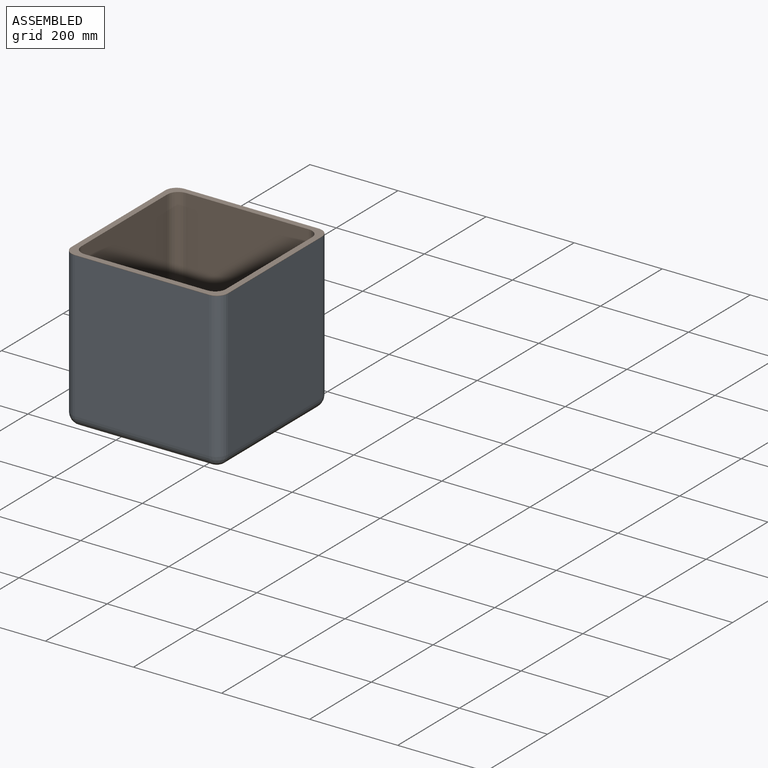
[diagram: assembled view]
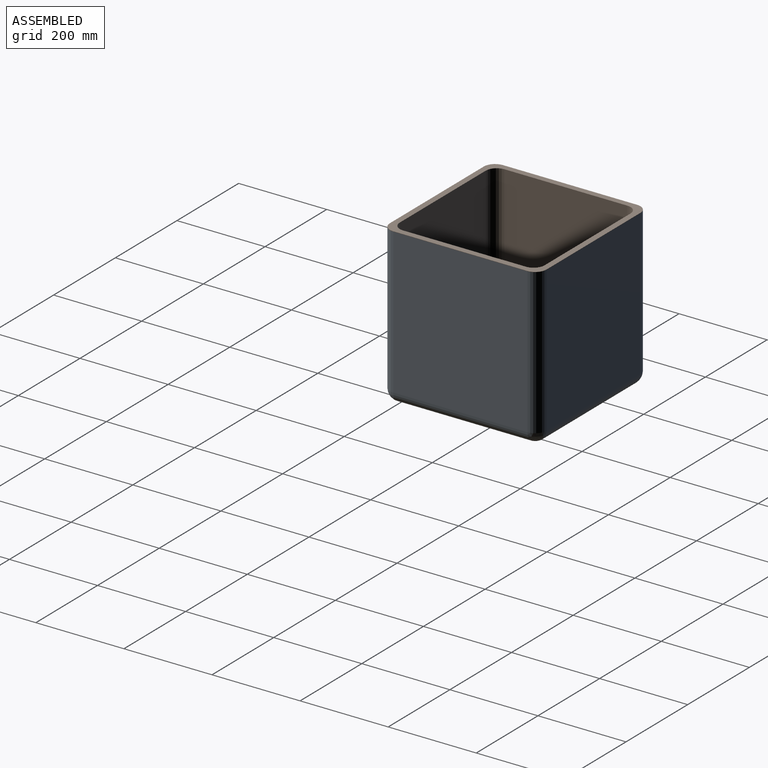
[diagram: assembled view, second angle]
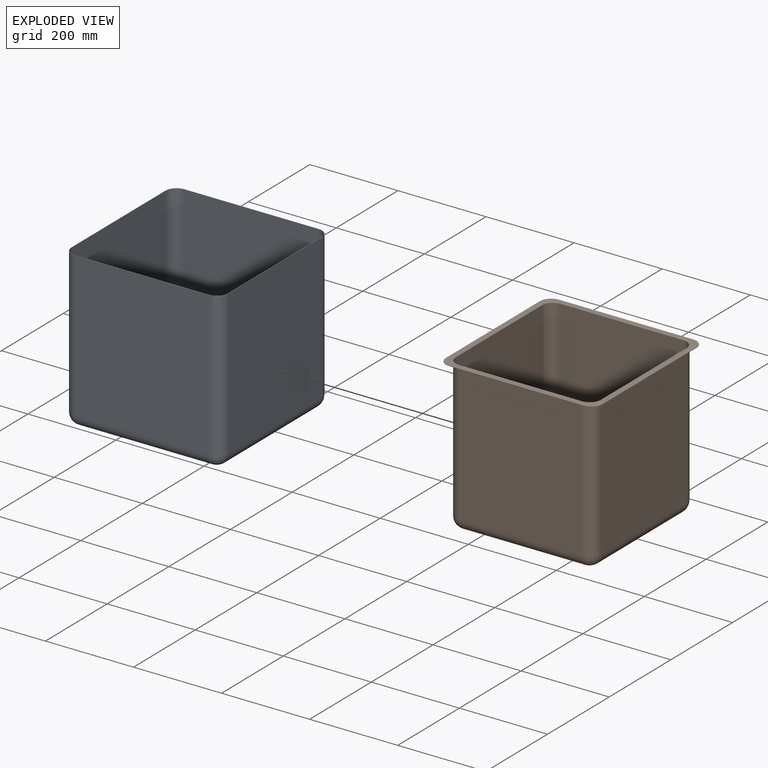
[diagram: exploded view]
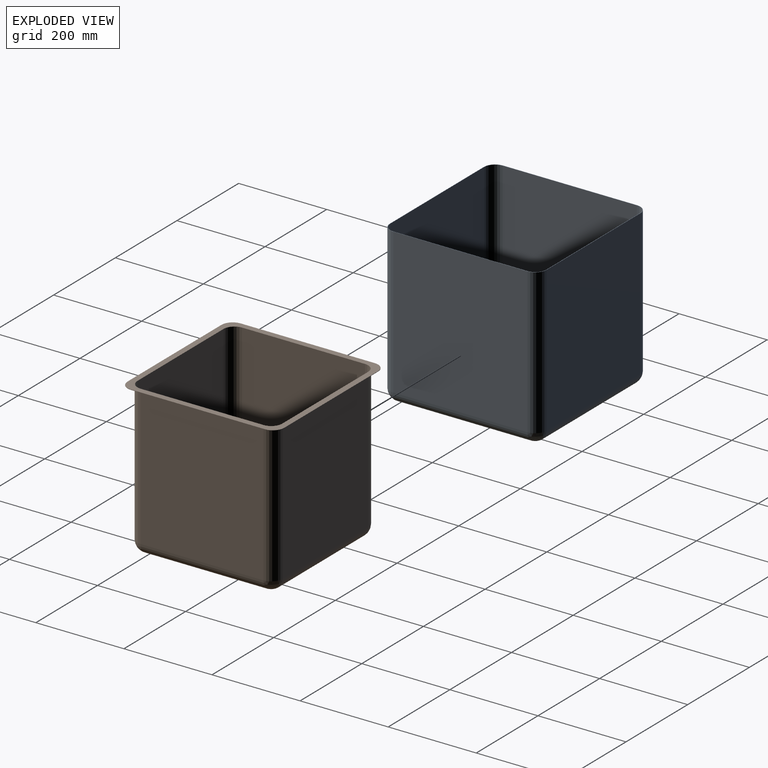
[diagram: exploded view, second angle]
ASSEMBLY  parts=2 mates=2
PART A: 35 faces, bbox 355.6x355.6x355.6 mm
  f0: plane 355.6x355.6mm, normal (0,0,1), area 1092.4mm2, adj f1,f2,f3,f4,f5,f6,f7,f8
  f1: plane 330.2x304.8mm, normal (1,0,0), area 100645mm2, adj f0,f2,f8,f17
  f2: cylinder r=25.4mm len=330.2mm, axis (0,0,-1), area 13174.4mm2, adj f0,f1,f3,f15
  f3: plane 330.2x304.8mm, normal (0,1,0), area 100645mm2, adj f0,f2,f4,f13
  f4: cylinder r=25.4mm len=330.2mm, axis (0,0,-1), area 13174.4mm2, adj f0,f3,f5,f11
  f5: plane 330.2x304.8mm, normal (-1,0,0), area 100645mm2, adj f0,f4,f6,f10
  f6: cylinder r=25.4mm len=330.2mm, axis (0,0,-1), area 13174.4mm2, adj f0,f5,f7,f12
  f7: plane 330.2x304.8mm, normal (0,-1,0), area 100645mm2, adj f0,f6,f8,f14
  f8: cylinder r=25.4mm len=330.2mm, axis (0,0,-1), area 13174.4mm2, adj f0,f1,f7,f16
  f9: plane 304.8x304.8mm, normal (0,0,-1), area 92903mm2, adj f10,f13,f14,f17
  f10: cylinder r=25.4mm len=304.8mm, axis (0,-1,0), area 12161mm2, adj f5,f9,f11,f12
  f11: sphere r=25.4mm, area 1013.4mm2, adj f4,f10,f13
  f12: sphere r=25.4mm, area 1013.4mm2, adj f6,f10,f14
  f13: cylinder r=25.4mm len=304.8mm, axis (-1,0,0), area 12161mm2, adj f3,f9,f11,f15
  f14: cylinder r=25.4mm len=304.8mm, axis (1,0,0), area 12161mm2, adj f7,f9,f12,f16
  f15: sphere r=25.4mm, area 1013.4mm2, adj f2,f13,f17
  f16: sphere r=25.4mm, area 1013.4mm2, adj f8,f14,f17
  f17: cylinder r=25.4mm len=304.8mm, axis (0,1,0), area 12161mm2, adj f1,f9,f15,f16
  f18: plane 330.2x304.8mm, normal (-1,0,0), area 100645mm2, adj f0,f19,f25,f34
  f19: cylinder r=24.61mm len=330.2mm, axis (0,0,-1), area 12762.7mm2, adj f0,f18,f20,f32
  f20: plane 330.2x304.8mm, normal (0,-1,0), area 100645mm2, adj f0,f19,f21,f30
  f21: cylinder r=24.61mm len=330.2mm, axis (0,0,-1), area 12762.7mm2, adj f0,f20,f22,f28
  f22: plane 330.2x304.8mm, normal (1,0,0), area 100645mm2, adj f0,f21,f23,f27
  f23: cylinder r=24.61mm len=330.2mm, axis (0,0,-1), area 12762.7mm2, adj f0,f22,f24,f29
  f24: plane 330.2x304.8mm, normal (0,1,0), area 100645mm2, adj f0,f23,f25,f31
  f25: cylinder r=24.61mm len=330.2mm, axis (0,0,-1), area 12762.7mm2, adj f0,f18,f24,f33
  f26: plane 304.8x304.8mm, normal (0,0,1), area 92903mm2, adj f27,f30,f31,f34
  f27: cylinder r=24.61mm len=304.8mm, axis (0,-1,0), area 11780.9mm2, adj f22,f26,f28,f29
  f28: sphere r=24.61mm, area 951.1mm2, adj f21,f27,f30
  f29: sphere r=24.61mm, area 951.1mm2, adj f23,f27,f31
  f30: cylinder r=24.61mm len=304.8mm, axis (-1,0,0), area 11780.9mm2, adj f20,f26,f28,f32
  f31: cylinder r=24.61mm len=304.8mm, axis (1,0,0), area 11780.9mm2, adj f24,f26,f29,f33
  f32: sphere r=24.61mm, area 951.1mm2, adj f19,f30,f34
  f33: sphere r=24.61mm, area 951.1mm2, adj f25,f31,f34
  f34: cylinder r=24.61mm len=304.8mm, axis (0,1,0), area 11780.9mm2, adj f18,f26,f32,f33
PART B: 44 faces, bbox 355.6x355.6x343.7 mm
  f0: plane 318.29x279.4mm, normal (-1,0,0), area 88931.3mm2, adj f1,f7,f16,f26
  f1: cylinder r=24.61mm len=318.29mm, axis (0,0,-1), area 12302.5mm2, adj f0,f2,f14,f26
  f2: plane 318.29x279.4mm, normal (0,-1,0), area 88931.3mm2, adj f1,f3,f12,f26
  f3: cylinder r=24.61mm len=318.29mm, axis (0,0,-1), area 12302.5mm2, adj f2,f4,f10,f26
  f4: plane 318.29x279.4mm, normal (1,0,0), area 88931.3mm2, adj f3,f5,f9,f26
  f5: cylinder r=24.61mm len=318.29mm, axis (0,0,-1), area 12302.5mm2, adj f4,f6,f11,f26
  f6: plane 318.29x279.4mm, normal (0,1,0), area 88931.3mm2, adj f5,f7,f13,f26
  f7: cylinder r=24.61mm len=318.29mm, axis (0,0,-1), area 12302.5mm2, adj f0,f6,f15,f26
  f8: plane 279.4x279.4mm, normal (0,0,1), area 78064.4mm2, adj f9,f12,f13,f16
  f9: cylinder r=24.61mm len=279.4mm, axis (0,-1,0), area 10799.2mm2, adj f4,f8,f10,f11
  f10: sphere r=24.61mm, area 951.1mm2, adj f3,f9,f12
  f11: sphere r=24.61mm, area 951.1mm2, adj f5,f9,f13
  f12: cylinder r=24.61mm len=279.4mm, axis (-1,0,0), area 10799.2mm2, adj f2,f8,f10,f14
  f13: cylinder r=24.61mm len=279.4mm, axis (1,0,0), area 10799.2mm2, adj f6,f8,f11,f15
  f14: sphere r=24.61mm, area 951.1mm2, adj f1,f12,f16
  f15: sphere r=24.61mm, area 951.1mm2, adj f7,f13,f16
  f16: cylinder r=24.61mm len=279.4mm, axis (0,1,0), area 10799.2mm2, adj f0,f8,f14,f15
  f17: plane 355.6x355.6mm, normal (0,0,-1), area 17419.3mm2, adj f18,f19,f20,f21,f22,f23,f24,f25
  f18: plane 304.8x0.79mm, normal (-1,0,0), area 241.9mm2, adj f17,f19,f25,f26
  f19: cylinder r=25.4mm len=25.4mm, axis (0,0,-1), area 31.7mm2, adj f17,f18,f20,f26
  f20: plane 304.8x0.79mm, normal (0,-1,0), area 241.9mm2, adj f17,f19,f21,f26
  f21: cylinder r=25.4mm len=25.4mm, axis (0,0,-1), area 31.7mm2, adj f17,f20,f22,f26
  f22: plane 304.8x0.79mm, normal (1,0,0), area 241.9mm2, adj f17,f21,f23,f26
  f23: cylinder r=25.4mm len=25.4mm, axis (0,0,-1), area 31.7mm2, adj f17,f22,f24,f26
  f24: plane 304.8x0.79mm, normal (0,1,0), area 241.9mm2, adj f17,f23,f25,f26
  f25: cylinder r=25.4mm len=25.4mm, axis (0,0,-1), area 31.7mm2, adj f17,f18,f24,f26
  f26: plane 355.6x355.6mm, normal (0,0,1), area 18431.1mm2, adj f0,f1,f2,f3,f4,f5,f6,f7
  f27: plane 279.4x279.4mm, normal (0,0,-1), area 78064.4mm2, adj f28,f30,f32,f34
  f28: cylinder r=25.4mm len=279.4mm, axis (0,1,0), area 11147.6mm2, adj f27,f29,f35,f43
  f29: sphere r=25.4mm, area 1013.4mm2, adj f28,f30,f42
  f30: cylinder r=25.4mm len=279.4mm, axis (-1,0,0), area 11147.6mm2, adj f27,f29,f31,f41
  f31: sphere r=25.4mm, area 1013.4mm2, adj f30,f32,f40
  f32: cylinder r=25.4mm len=279.4mm, axis (0,-1,0), area 11147.6mm2, adj f27,f31,f33,f39
  f33: sphere r=25.4mm, area 1013.4mm2, adj f32,f34,f38
  f34: cylinder r=25.4mm len=279.4mm, axis (1,0,0), area 11147.6mm2, adj f27,f33,f35,f37
  f35: sphere r=25.4mm, area 1013.4mm2, adj f28,f34,f36
  f36: cylinder r=25.4mm len=317.5mm, axis (0,0,-1), area 12667.7mm2, adj f17,f35,f37,f43
  f37: plane 317.5x279.4mm, normal (0,-1,0), area 88709.5mm2, adj f17,f34,f36,f38
  f38: cylinder r=25.4mm len=317.5mm, axis (0,0,-1), area 12667.7mm2, adj f17,f33,f37,f39
  f39: plane 317.5x279.4mm, normal (-1,0,0), area 88709.5mm2, adj f17,f32,f38,f40
  f40: cylinder r=25.4mm len=317.5mm, axis (0,0,-1), area 12667.7mm2, adj f17,f31,f39,f41
  f41: plane 317.5x279.4mm, normal (0,1,0), area 88709.5mm2, adj f17,f30,f40,f42
  f42: cylinder r=25.4mm len=317.5mm, axis (0,0,-1), area 12667.7mm2, adj f17,f29,f41,f43
  f43: plane 317.5x279.4mm, normal (1,0,0), area 88709.5mm2, adj f17,f28,f36,f42
PLACE A t=(-527.76,-241.32,-262.87)mm
PLACE B t=(-527.76,-241.32,-250.17)mm
MATE planar B.f22 <-> A.f1  axis (1,0,0) through (-349.96,-241.32,93.12)mm
MATE planar B.f20 <-> A.f7  axis (0,-1,0) through (-527.76,-419.12,93.12)mm
